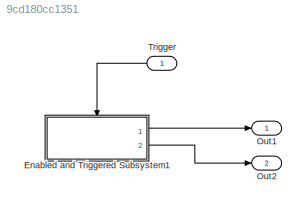
MODEL slx_9cd180cc1351
KIND model
CONFIG AbsTol = auto
CONFIG FixedStep = 1
CONFIG MaxStep = auto
CONFIG MinStep = auto
CONFIG RelTol = 1e-3
CONFIG SampleTimeConstraint = Unconstrained
CONFIG Solver = FixedStepDiscrete
CONFIG SolverMode = SingleTasking
CONFIG SolverName = FixedStepDiscrete
CONFIG StartTime = 0.0
CONFIG StopTime = 10.0
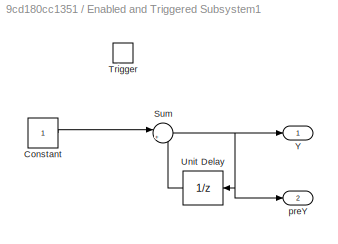
BLOCK [SubSystem] Enabled and Triggered Subsystem1
  Ports = [0, 2, 0, 1]
  RequestExecContextInheritance = off
  TreatAsAtomicUnit = on
  Variant = off
BLOCK [Constant] Enabled and Triggered Subsystem1/Constant
BLOCK [Sum] Enabled and Triggered Subsystem1/Sum
  IconShape = round
  InputSameDT = off
  Inputs = |++
  OutDataTypeStr = Inherit: Inherit via internal rule
  Ports = [2, 1]
  SaturateOnIntegerOverflow = off
BLOCK [TriggerPort] Enabled and Triggered Subsystem1/Trigger
  Ports = []
  StatesWhenEnabling = held
BLOCK [UnitDelay] Enabled and Triggered Subsystem1/Unit Delay
  InputProcessing = Elements as channels (sample based)
  SampleTime = -1
BLOCK [Outport] Enabled and Triggered Subsystem1/Y
  IconDisplay = Port number
  InitialOutput = 10
  OutputWhenDisabled = reset
BLOCK [Outport] Enabled and Triggered Subsystem1/preY
  IconDisplay = Port number
  InitialOutput = 10
  OutputWhenDisabled = reset
  Port = 2
BLOCK [Outport] Out1
  IconDisplay = Port number
BLOCK [Outport] Out2
  IconDisplay = Port number
  Port = 2
BLOCK [Inport] Trigger
  IconDisplay = Port number
  OutDataTypeStr = boolean
LINE Enabled and Triggered Subsystem1/Constant:1 -> Enabled and Triggered Subsystem1/Sum:1
NET Enabled and Triggered Subsystem1/Sum:1 -> Enabled and Triggered Subsystem1/Unit Delay:1, Enabled and Triggered Subsystem1/Y:1, Enabled and Triggered Subsystem1/preY:1
LINE Enabled and Triggered Subsystem1/Unit Delay:1 -> Enabled and Triggered Subsystem1/Sum:2
LINE Enabled and Triggered Subsystem1:1 -> Out1:1
LINE Enabled and Triggered Subsystem1:2 -> Out2:1
LINE Trigger:1 -> Enabled and Triggered Subsystem1:trigger
note: NET lines group one-source signal fan-out (src -> all destinations, sorted); 1:1 wires keep LINE
